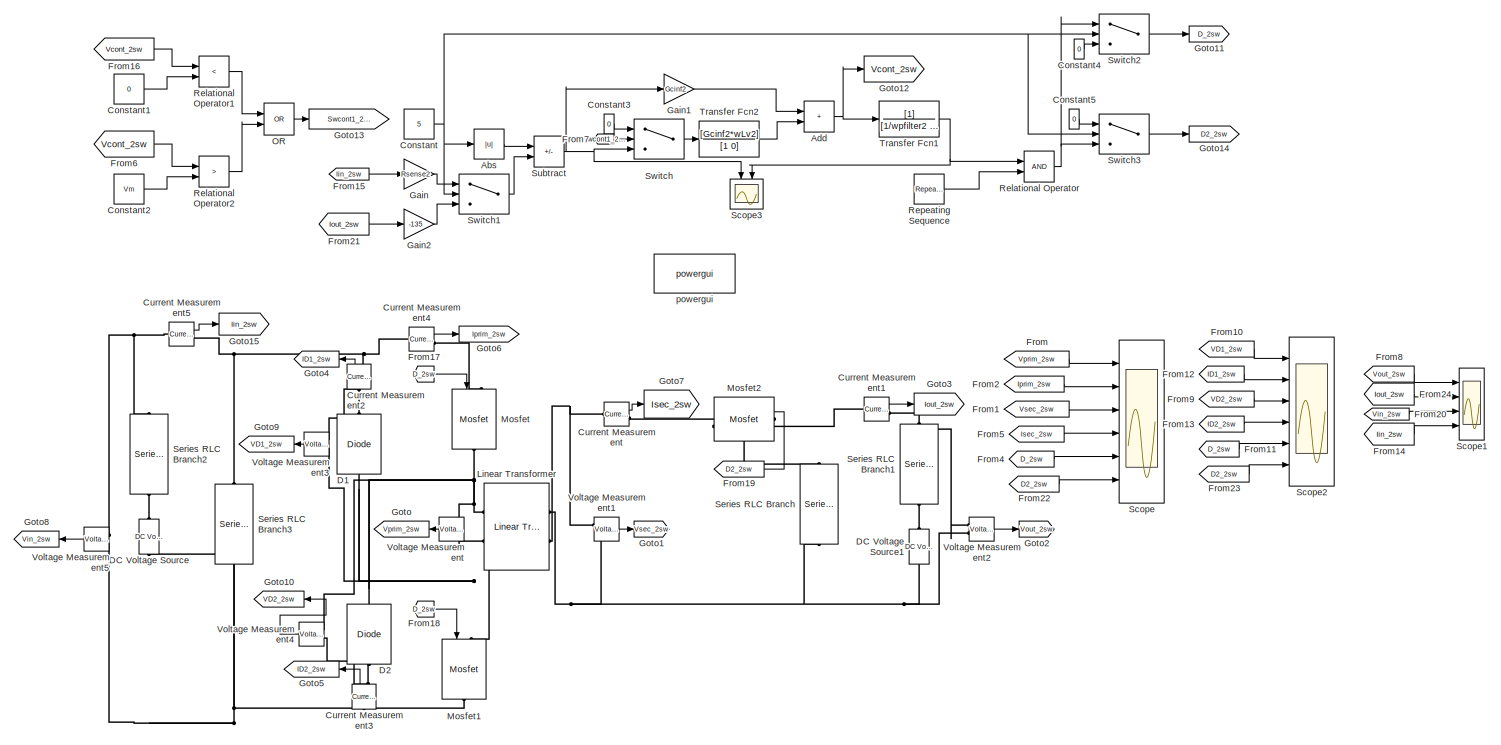
[diagram: root canvas - part 1/1, most of the canvas]
MODEL slx_689e7ad96f58
KIND model
CONFIG AbsTol = auto
CONFIG EnableMultiTasking = off
CONFIG FixedStep = 5e-10
CONFIG MaxStep = auto
CONFIG MinStep = auto
CONFIG RelTol = 1e-3
CONFIG SampleTimeConstraint = Unconstrained
CONFIG SolverName = ode4
CONFIG StartTime = 0.0
CONFIG StopTime = 1.425e-3
BLOCK [Abs] Abs
  SaturateOnIntegerOverflow = off
BLOCK [Sum] Add
  IconShape = rectangular
  Ports = [2, 1]
BLOCK [Constant] Constant
  Value = 5
BLOCK [Constant] Constant1
  Value = 0
BLOCK [Constant] Constant2
  Value = Vm
BLOCK [Constant] Constant3
  Value = 0
BLOCK [Constant] Constant4
  Value = 0
BLOCK [Constant] Constant5
  Value = 0
BLOCK [Reference] Current Measurement  REF=spsCurrentMeasurementLib/Current Measurement
  Ports = [0, 1, 0, 0, 0, 1, 1]
  SourceBlock = spsCurrentMeasurementLib/Current Measurement
  SourceProductBaseCode = PS
  SourceType = Current Measurement
  UserDataPersistent = on
BLOCK [Reference] Current Measurement1  REF=spsCurrentMeasurementLib/Current Measurement
  Ports = [0, 1, 0, 0, 0, 1, 1]
  SourceBlock = spsCurrentMeasurementLib/Current Measurement
  SourceProductBaseCode = PS
  SourceType = Current Measurement
  UserDataPersistent = on
BLOCK [Reference] Current Measurement2  REF=spsCurrentMeasurementLib/Current Measurement
  NameLocation = right
  Ports = [0, 1, 0, 0, 0, 1, 1]
  SourceBlock = spsCurrentMeasurementLib/Current Measurement
  SourceProductBaseCode = PS
  SourceType = Current Measurement
  UserDataPersistent = on
BLOCK [Reference] Current Measurement3  REF=spsCurrentMeasurementLib/Current Measurement
  NameLocation = right
  Ports = [0, 1, 0, 0, 0, 1, 1]
  SourceBlock = spsCurrentMeasurementLib/Current Measurement
  SourceProductBaseCode = PS
  SourceType = Current Measurement
  UserDataPersistent = on
BLOCK [Reference] Current Measurement4  REF=spsCurrentMeasurementLib/Current Measurement
  Ports = [0, 1, 0, 0, 0, 1, 1]
  SourceBlock = spsCurrentMeasurementLib/Current Measurement
  SourceProductBaseCode = PS
  SourceType = Current Measurement
  UserDataPersistent = on
BLOCK [Reference] Current Measurement5  REF=spsCurrentMeasurementLib/Current Measurement
  Ports = [0, 1, 0, 0, 0, 1, 1]
  SourceBlock = spsCurrentMeasurementLib/Current Measurement
  SourceProductBaseCode = PS
  SourceType = Current Measurement
  UserDataPersistent = on
BLOCK [Reference] D1  REF=spsDiodeLib/Diode
  NameLocation = right
  Ports = [0, 0, 0, 0, 0, 1, 1]
  SourceBlock = spsDiodeLib/Diode
  SourceProductBaseCode = PS
  SourceType = Diode
BLOCK [Reference] D2  REF=spsDiodeLib/Diode
  NameLocation = right
  Ports = [0, 0, 0, 0, 0, 1, 1]
  SourceBlock = spsDiodeLib/Diode
  SourceProductBaseCode = PS
  SourceType = Diode
BLOCK [Reference] DC Voltage Source  REF=spsDCVoltageSourceLib/DC Voltage Source
  Ports = [0, 0, 0, 0, 0, 1, 1]
  SourceBlock = spsDCVoltageSourceLib/DC Voltage Source
  SourceProductBaseCode = PS
  SourceType = DC Voltage Source
BLOCK [Reference] DC Voltage Source1  REF=spsDCVoltageSourceLib/DC Voltage Source
  Ports = [0, 0, 0, 0, 0, 1, 1]
  SourceBlock = spsDCVoltageSourceLib/DC Voltage Source
  SourceProductBaseCode = PS
  SourceType = DC Voltage Source
BLOCK [From] From
  GotoTag = Vprim_2sw
  NameLocation = top
BLOCK [From] From1
  GotoTag = Vsec_2sw
BLOCK [From] From10
  GotoTag = VD1_2sw
  NameLocation = top
BLOCK [From] From11
  GotoTag = D_2sw
BLOCK [From] From12
  GotoTag = ID1_2sw
  NameLocation = top
BLOCK [From] From13
  GotoTag = ID2_2sw
  NameLocation = top
BLOCK [From] From14
  GotoTag = Iin_2sw
BLOCK [From] From15
  GotoTag = Iin_2sw
BLOCK [From] From16
  GotoTag = Vcont_2sw
BLOCK [From] From17
  GotoTag = D_2sw
BLOCK [From] From18
  GotoTag = D_2sw
BLOCK [From] From19
  GotoTag = D2_2sw
BLOCK [From] From2
  GotoTag = Iprim_2sw
BLOCK [From] From20
  GotoTag = Vin_2sw
  NameLocation = top
BLOCK [From] From21
  GotoTag = Iout_2sw
BLOCK [From] From22
  GotoTag = D2_2sw
BLOCK [From] From23
  GotoTag = D2_2sw
BLOCK [From] From24
  GotoTag = Iout_2sw
BLOCK [From] From4
  GotoTag = D_2sw
BLOCK [From] From5
  GotoTag = Isec_2sw
BLOCK [From] From6
  GotoTag = Vcont_2sw
BLOCK [From] From7
  GotoTag = Swcont1_2sw
BLOCK [From] From8
  GotoTag = Vout_2sw
BLOCK [From] From9
  GotoTag = VD2_2sw
  NameLocation = top
BLOCK [Gain] Gain
  Gain = Rsense2
BLOCK [Gain] Gain1
  Gain = Gcinf2
BLOCK [Gain] Gain2
  Gain = -135
BLOCK [Goto] Goto
  GotoTag = Vprim_2sw
  NameLocation = top
BLOCK [Goto] Goto1
  GotoTag = Vsec_2sw
BLOCK [Goto] Goto10
  GotoTag = VD2_2sw
  NameLocation = top
BLOCK [Goto] Goto11
  GotoTag = D_2sw
BLOCK [Goto] Goto12
  GotoTag = Vcont_2sw
BLOCK [Goto] Goto13
  GotoTag = Swcont1_2sw
BLOCK [Goto] Goto14
  GotoTag = D2_2sw
BLOCK [Goto] Goto15
  GotoTag = Iin_2sw
BLOCK [Goto] Goto2
  GotoTag = Vout_2sw
BLOCK [Goto] Goto3
  GotoTag = Iout_2sw
BLOCK [Goto] Goto4
  GotoTag = ID1_2sw
  NameLocation = top
BLOCK [Goto] Goto5
  GotoTag = ID2_2sw
  NameLocation = top
BLOCK [Goto] Goto6
  GotoTag = Iprim_2sw
BLOCK [Goto] Goto7
  GotoTag = Isec_2sw
BLOCK [Goto] Goto8
  GotoTag = Vin_2sw
BLOCK [Goto] Goto9
  GotoTag = VD1_2sw
  NameLocation = top
BLOCK [Reference] Linear Transformer  REF=spsLinearTransformerLib/Linear Transformer
  Ports = [0, 0, 0, 0, 0, 2, 2]
  SourceBlock = spsLinearTransformerLib/Linear Transformer
  SourceProductBaseCode = PS
  SourceType = Linear Transformer
BLOCK [Reference] Mosfet  REF=spsMosfetLib/Mosfet
  NameLocation = left
  Ports = [1, 0, 0, 0, 0, 1, 1]
  SourceBlock = spsMosfetLib/Mosfet
  SourceProductBaseCode = PS
  SourceType = Mosfet
BLOCK [Reference] Mosfet1  REF=spsMosfetLib/Mosfet
  NameLocation = left
  Ports = [1, 0, 0, 0, 0, 1, 1]
  SourceBlock = spsMosfetLib/Mosfet
  SourceProductBaseCode = PS
  SourceType = Mosfet
BLOCK [Reference] Mosfet2  REF=spsMosfetLib/Mosfet
  Ports = [1, 0, 0, 0, 0, 1, 1]
  SourceBlock = spsMosfetLib/Mosfet
  SourceProductBaseCode = PS
  SourceType = Mosfet
BLOCK [Logic] OR
  AllPortsSameDT = off
  IconShape = distinctive
  Operator = OR
  OutDataTypeStr = boolean
  Ports = [2, 1]
BLOCK [RelationalOperator] Relational Operator
  InputSameDT = off
  OutDataTypeStr = boolean
  Ports = [2, 1]
  RndMeth = Simplest
BLOCK [RelationalOperator] Relational Operator1
  InputSameDT = off
  Operator = <
  OutDataTypeStr = boolean
  Ports = [2, 1]
  RndMeth = Simplest
BLOCK [RelationalOperator] Relational Operator2
  InputSameDT = off
  Operator = >
  OutDataTypeStr = boolean
  Ports = [2, 1]
  RndMeth = Simplest
BLOCK [Reference] Repeating Sequence  REF=simulink/Sources/Repeating
Sequence
  Ports = [0, 1]
  SourceBlock = simulink/Sources/Repeating\nSequence
  SourceProductBaseCode = SL
  SourceType = Repeating table
BLOCK [Scope] Scope
  Floating = off
  NumInputPorts = 6
  Ports = [6]
  ScopeSpecificationString = Simulink.scopes.TimeScopeBlockCfg('CurrentConfiguration', extmgr.ConfigurationSet(extmgr.Configuration('Core','General UI',true),extmgr.Configuration('Core','Source UI',true),extmgr.Configuration('Sources','WiredSimulink',true),extmgr.Configuration('Visuals','Time Domain',true,'SerializedDisplays',{struct('MinYLimReal','-3.58723','MaxYLimReal','4.53504','YLabelReal','','MinYLimMag','0.00000','MaxY...<+6481ch>
BLOCK [Scope] Scope1
  Floating = off
  NumInputPorts = 4
  Ports = [4]
  ScopeSpecificationString = Simulink.scopes.TimeScopeBlockCfg('CurrentConfiguration', extmgr.ConfigurationSet(extmgr.Configuration('Core','General UI',true),extmgr.Configuration('Core','Source UI',true),extmgr.Configuration('Sources','WiredSimulink',true,'DataLoggingVariableName','ScopeData2'),extmgr.Configuration('Visuals','Time Domain',true,'SerializedDisplays',{struct('MinYLimReal','11.09788','MaxYLimReal','11.1191','YLab...<+3719ch>
BLOCK [Scope] Scope2
  Floating = off
  NumInputPorts = 6
  Ports = [6]
  ScopeSpecificationString = Simulink.scopes.TimeScopeBlockCfg('CurrentConfiguration', extmgr.ConfigurationSet(extmgr.Configuration('Core','General UI',true),extmgr.Configuration('Core','Source UI',true),extmgr.Configuration('Sources','WiredSimulink',true,'DataLoggingVariableName','ScopeData2'),extmgr.Configuration('Visuals','Time Domain',true,'SerializedDisplays',{struct('MinYLimReal','0.04719','MaxYLimReal','4.10587','YLabe...<+6429ch>
BLOCK [Scope] Scope3
  Floating = off
  NameLocation = left
  NumInputPorts = 2
  Ports = [2]
  ScopeSpecificationString = Simulink.scopes.TimeScopeBlockCfg('CurrentConfiguration', extmgr.ConfigurationSet(extmgr.Configuration('Core','General UI',true),extmgr.Configuration('Core','Source UI',true),extmgr.Configuration('Sources','WiredSimulink',true,'DataLoggingVariableName','ScopeData1'),extmgr.Configuration('Visuals','Time Domain',true,'SerializedDisplays',{struct('MinYLimReal','-3.3164','MaxYLimReal','5.92404','YLabe...<+2230ch>
BLOCK [Reference] Series RLC Branch  REF=spsSeriesRLCBranchLib/Series RLC Branch
  NameLocation = left
  Ports = [0, 0, 0, 0, 0, 1, 1]
  SourceBlock = spsSeriesRLCBranchLib/Series RLC Branch
  SourceProductBaseCode = PS
  SourceType = Series RLC Branch
BLOCK [Reference] Series RLC Branch1  REF=spsSeriesRLCBranchLib/Series RLC Branch
  NameLocation = left
  Ports = [0, 0, 0, 0, 0, 1, 1]
  SourceBlock = spsSeriesRLCBranchLib/Series RLC Branch
  SourceProductBaseCode = PS
  SourceType = Series RLC Branch
BLOCK [Reference] Series RLC Branch2  REF=spsSeriesRLCBranchLib/Series RLC Branch
  NameLocation = left
  Ports = [0, 0, 0, 0, 0, 1, 1]
  SourceBlock = spsSeriesRLCBranchLib/Series RLC Branch
  SourceProductBaseCode = PS
  SourceType = Series RLC Branch
BLOCK [Reference] Series RLC Branch3  REF=spsSeriesRLCBranchLib/Series RLC Branch
  NameLocation = left
  Ports = [0, 0, 0, 0, 0, 1, 1]
  SourceBlock = spsSeriesRLCBranchLib/Series RLC Branch
  SourceProductBaseCode = PS
  SourceType = Series RLC Branch
BLOCK [Sum] Subtract
  IconShape = rectangular
  Inputs = +-
  Ports = [2, 1]
BLOCK [Switch] Switch
  Criteria = u2 > Threshold
  InputSameDT = off
  SaturateOnIntegerOverflow = off
BLOCK [Switch] Switch1
  Criteria = u2 > Threshold
  InputSameDT = off
  SaturateOnIntegerOverflow = off
BLOCK [Switch] Switch2
  Criteria = u2 > Threshold
  InputSameDT = off
  SaturateOnIntegerOverflow = off
BLOCK [Switch] Switch3
  Criteria = u2 > Threshold
  InputSameDT = off
  SaturateOnIntegerOverflow = off
BLOCK [TransferFcn] Transfer Fcn1
  Denominator = [1/wpfilter2 1]
BLOCK [TransferFcn] Transfer Fcn2
  Denominator = [1 0]
  Numerator = [Gcinf2*wLv2]
BLOCK [Reference] Voltage Measurement  REF=spsVoltageMeasurementLib/Voltage Measurement
  Ports = [0, 1, 0, 0, 0, 2]
  SourceBlock = spsVoltageMeasurementLib/Voltage Measurement
  SourceProductBaseCode = PS
  SourceType = Voltage Measurement
  UserDataPersistent = on
BLOCK [Reference] Voltage Measurement1  REF=spsVoltageMeasurementLib/Voltage Measurement
  Ports = [0, 1, 0, 0, 0, 2]
  SourceBlock = spsVoltageMeasurementLib/Voltage Measurement
  SourceProductBaseCode = PS
  SourceType = Voltage Measurement
  UserDataPersistent = on
BLOCK [Reference] Voltage Measurement2  REF=spsVoltageMeasurementLib/Voltage Measurement
  Ports = [0, 1, 0, 0, 0, 2]
  SourceBlock = spsVoltageMeasurementLib/Voltage Measurement
  SourceProductBaseCode = PS
  SourceType = Voltage Measurement
  UserDataPersistent = on
BLOCK [Reference] Voltage Measurement3  REF=spsVoltageMeasurementLib/Voltage Measurement
  Ports = [0, 1, 0, 0, 0, 2]
  SourceBlock = spsVoltageMeasurementLib/Voltage Measurement
  SourceProductBaseCode = PS
  SourceType = Voltage Measurement
  UserDataPersistent = on
BLOCK [Reference] Voltage Measurement4  REF=spsVoltageMeasurementLib/Voltage Measurement
  Ports = [0, 1, 0, 0, 0, 2]
  SourceBlock = spsVoltageMeasurementLib/Voltage Measurement
  SourceProductBaseCode = PS
  SourceType = Voltage Measurement
  UserDataPersistent = on
BLOCK [Reference] Voltage Measurement5  REF=spsVoltageMeasurementLib/Voltage Measurement
  Ports = [0, 1, 0, 0, 0, 2]
  SourceBlock = spsVoltageMeasurementLib/Voltage Measurement
  SourceProductBaseCode = PS
  SourceType = Voltage Measurement
  UserDataPersistent = on
BLOCK [Reference] powergui  REF=spspowerguiLib/powergui
  Ports = []
  Priority = 1
  SourceBlock = spspowerguiLib/powergui
  SourceProductBaseCode = PS
  SourceType = PSB option menu block
LINE Abs:1 -> Subtract:1
NET Add:1 -> Goto12:1, Transfer Fcn1:1
LINE Constant1:1 -> Relational Operator1:2
LINE Constant2:1 -> Relational Operator2:2
LINE Constant3:1 -> Switch:1
LINE Constant4:1 -> Switch2:3
LINE Constant5:1 -> Switch3:1
NET Constant:1 -> Abs:1, Switch1:2, Switch2:2, Switch3:2
LINE Current Measurement1:1 -> Goto3:1
LINE Current Measurement2:1 -> Goto4:1
LINE Current Measurement3:1 -> Goto5:1
LINE Current Measurement4:1 -> Goto6:1
LINE Current Measurement5:1 -> Goto15:1
LINE Current Measurement:1 -> Goto7:1
LINE From10:1 -> Scope2:1
LINE From11:1 -> Scope2:5
LINE From12:1 -> Scope2:2
LINE From13:1 -> Scope2:4
LINE From14:1 -> Scope1:4
LINE From15:1 -> Gain:1
LINE From16:1 -> Relational Operator1:1
LINE From17:1 -> Mosfet:1
LINE From18:1 -> Mosfet1:1
LINE From19:1 -> Mosfet2:1
LINE From1:1 -> Scope:3
LINE From20:1 -> Scope1:3
LINE From21:1 -> Gain2:1
LINE From22:1 -> Scope:6
LINE From23:1 -> Scope2:6
LINE From24:1 -> Scope1:2
LINE From2:1 -> Scope:2
LINE From4:1 -> Scope:5
LINE From5:1 -> Scope:4
LINE From6:1 -> Relational Operator2:1
LINE From7:1 -> Switch:2
LINE From8:1 -> Scope1:1
LINE From9:1 -> Scope2:3
LINE From:1 -> Scope:1
LINE Gain1:1 -> Add:1
LINE Gain2:1 -> Switch1:3
LINE Gain:1 -> Switch1:1
LINE OR:1 -> Goto13:1
LINE Relational Operator1:1 -> OR:1
LINE Relational Operator2:1 -> OR:2
NET Relational Operator:1 -> Switch2:1, Switch3:3
LINE Repeating Sequence:1 -> Relational Operator:2
NET Subtract:1 -> Gain1:1, Scope3:1, Switch:3
LINE Switch1:1 -> Subtract:2
LINE Switch2:1 -> Goto11:1
LINE Switch3:1 -> Goto14:1
LINE Switch:1 -> Transfer Fcn2:1
NET Transfer Fcn1:1 -> Relational Operator:1, Scope3:2
LINE Transfer Fcn2:1 -> Add:2
LINE Voltage Measurement1:1 -> Goto1:1
LINE Voltage Measurement2:1 -> Goto2:1
LINE Voltage Measurement3:1 -> Goto9:1
LINE Voltage Measurement4:1 -> Goto10:1
LINE Voltage Measurement5:1 -> Goto8:1
LINE Voltage Measurement:1 -> Goto:1
PNET net1: Current Measurement1:LConn1 -- Mosfet2:LConn1 -- Series RLC Branch:LConn1
PNET net2: Current Measurement1:RConn1 -- Series RLC Branch1:LConn1 -- Voltage Measurement2:LConn1
PNET net3: Current Measurement2:LConn1 -- D1:RConn1 -- Voltage Measurement3:LConn1
PNET net4: Current Measurement2:RConn1 -- Current Measurement4:LConn1 -- Current Measurement5:RConn1 -- Series RLC Branch3:LConn1
PNET net5: Current Measurement3:LConn1 -- DC Voltage Source:LConn1 -- Mosfet1:RConn1 -- Series RLC Branch3:RConn1 -- Voltage Measurement5:LConn2
PNET net6: Current Measurement3:RConn1 -- D2:LConn1 -- Voltage Measurement4:LConn2
PLINE Current Measurement4:RConn1 -- Mosfet:LConn1
PNET net7: Current Measurement5:LConn1 -- Series RLC Branch2:LConn1 -- Voltage Measurement5:LConn1
PNET net8: Current Measurement:LConn1 -- Linear Transformer:RConn2 -- Voltage Measurement1:LConn1
PLINE Current Measurement:RConn1 -- Mosfet2:RConn1
PNET net9: D1:LConn1 -- Linear Transformer:LConn2 -- Mosfet1:LConn1 -- Voltage Measurement3:LConn2 -- Voltage Measurement:LConn2
PNET net10: D2:RConn1 -- Linear Transformer:LConn1 -- Mosfet:RConn1 -- Voltage Measurement4:LConn1 -- Voltage Measurement:LConn1
PNET net11: DC Voltage Source1:LConn1 -- Linear Transformer:RConn1 -- Series RLC Branch:RConn1 -- Voltage Measurement1:LConn2 -- Voltage Measurement2:LConn2
PLINE DC Voltage Source1:RConn1 -- Series RLC Branch1:RConn1
PLINE DC Voltage Source:RConn1 -- Series RLC Branch2:RConn1
note: NET lines group one-source signal fan-out (src -> all destinations, sorted); 1:1 wires keep LINE; PNET lines group multi-terminal physical nets as a canonical sorted terminal list (undirected conserving connections); 2-terminal nets keep the pairwise PLINE form
